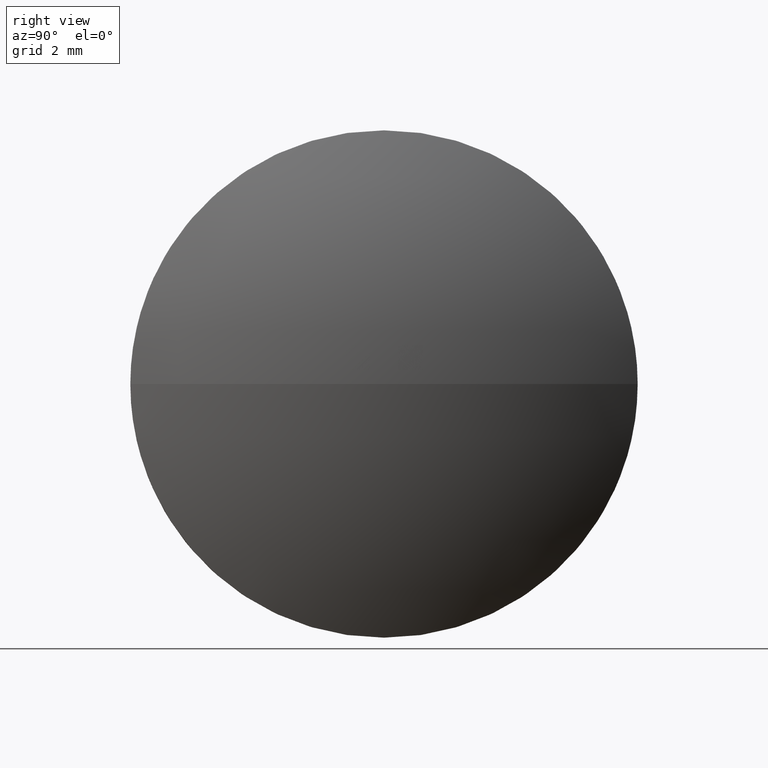
[diagram: clean part render]
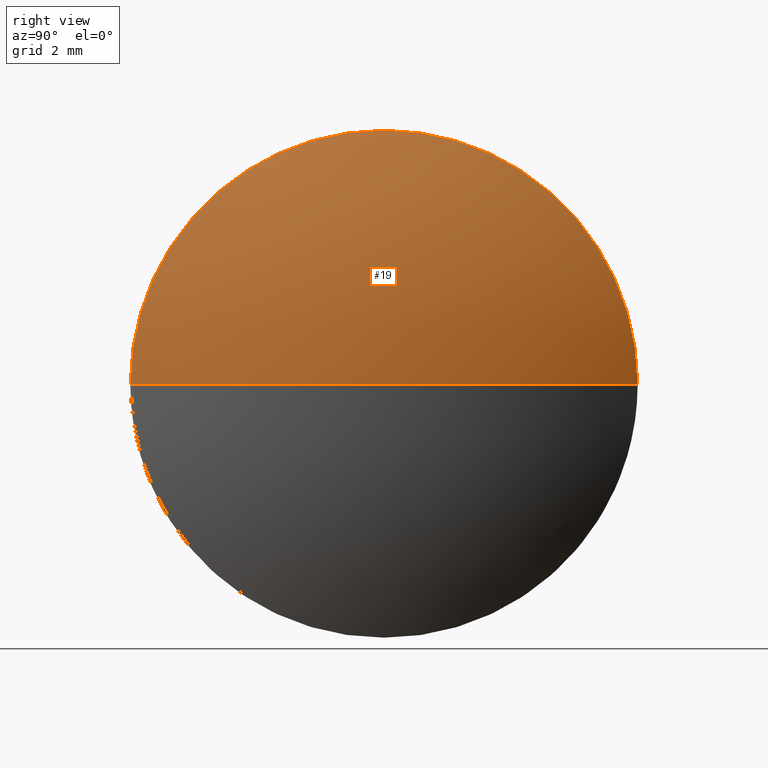
[diagram: same view with one face highlighted and labeled with its STEP entity id]
A machine part, right view. The second image highlights one B-rep face of the part: STEP entity #19.
In plain terms, the highlighted spherical surface has radius 10.3349 mm.
Its self-contained STEP definition (entity closure, byte-faithful):
#4 = DIRECTION ( 'NONE',  ( -0.0000000000000000000, 0.0000000000000000000, 1.000000000000000000 ) ) ;
#13 = CARTESIAN_POINT ( 'NONE',  ( 582.0191052701056800, 187.9834042929954000, 0.0000000000000000000 ) ) ;
#16 = EDGE_CURVE ( 'NONE', #52, #73, #164, .T. ) ;
#19 = ADVANCED_FACE ( 'NONE', ( #125 ), #150, .T. ) ;
#22 = CARTESIAN_POINT ( 'NONE',  ( 582.0191052701056800, 182.9834042929953700, 5.000000000000004400 ) ) ;
#31 = VERTEX_POINT ( 'NONE', #186 ) ;
#41 = DIRECTION ( 'NONE',  ( 0.0000000000000000000, 0.0000000000000000000, 1.000000000000000000 ) ) ;
#42 = AXIS2_PLACEMENT_3D ( 'NONE', #63, #160, #131 ) ;
#45 = ORIENTED_EDGE ( 'NONE', *, *, #151, .F. ) ;
#49 = AXIS2_PLACEMENT_3D ( 'NONE', #54, #82, #41 ) ;
#51 = AXIS2_PLACEMENT_3D ( 'NONE', #91, #175, #161 ) ;
#52 = VERTEX_POINT ( 'NONE', #129 ) ;
#54 = CARTESIAN_POINT ( 'NONE',  ( 582.0191052701056800, 182.9834042929953700, 0.0000000000000000000 ) ) ;
#58 = EDGE_CURVE ( 'NONE', #31, #133, #183, .T. ) ;
#63 = CARTESIAN_POINT ( 'NONE',  ( 572.9741827894854400, 182.9834042929954300, 0.0000000000000000000 ) ) ;
#68 = CARTESIAN_POINT ( 'NONE',  ( 572.9741827894854400, 182.9834042929954300, 0.0000000000000000000 ) ) ;
#73 = VERTEX_POINT ( 'NONE', #22 ) ;
#75 = CIRCLE ( 'NONE', #49, 5.000000000000004400 ) ;
#79 = CARTESIAN_POINT ( 'NONE',  ( 572.9741827894854400, 182.9834042929954300, 0.0000000000000000000 ) ) ;
#82 = DIRECTION ( 'NONE',  ( -1.000000000000000000, -0.0000000000000000000, -0.0000000000000000000 ) ) ;
#85 = ORIENTED_EDGE ( 'NONE', *, *, #16, .F. ) ;
#86 = ORIENTED_EDGE ( 'NONE', *, *, #58, .T. ) ;
#91 = CARTESIAN_POINT ( 'NONE',  ( 582.0191052701056800, 182.9834042929953700, 0.0000000000000000000 ) ) ;
#94 = DIRECTION ( 'NONE',  ( 0.0000000000000000000, 1.000000000000000000, 1.224646799147353500E-016 ) ) ;
#95 = AXIS2_PLACEMENT_3D ( 'NONE', #68, #163, #94 ) ;
#96 = EDGE_LOOP ( 'NONE', ( #159, #86, #45, #85 ) ) ;
#101 = CIRCLE ( 'NONE', #95, 10.33492248062026200 ) ;
#124 = DIRECTION ( 'NONE',  ( 1.000000000000000000, 0.0000000000000000000, 0.0000000000000000000 ) ) ;
#125 = FACE_OUTER_BOUND ( 'NONE', #96, .T. ) ;
#129 = CARTESIAN_POINT ( 'NONE',  ( 582.0191052701056800, 177.9834042929954000, -6.123233995736802800E-016 ) ) ;
#131 = DIRECTION ( 'NONE',  ( 0.0000000000000000000, 1.000000000000000000, 0.0000000000000000000 ) ) ;
#133 = VERTEX_POINT ( 'NONE', #13 ) ;
#150 = SPHERICAL_SURFACE ( 'NONE', #42, 10.33492248062026400 ) ;
#151 = EDGE_CURVE ( 'NONE', #73, #133, #75, .T. ) ;
#159 = ORIENTED_EDGE ( 'NONE', *, *, #170, .F. ) ;
#160 = DIRECTION ( 'NONE',  ( -0.0000000000000000000, 0.0000000000000000000, -1.000000000000000000 ) ) ;
#161 = DIRECTION ( 'NONE',  ( 0.0000000000000000000, 0.0000000000000000000, 1.000000000000000000 ) ) ;
#163 = DIRECTION ( 'NONE',  ( 0.0000000000000000000, 1.224646799147353200E-016, -1.000000000000000000 ) ) ;
#164 = CIRCLE ( 'NONE', #51, 5.000000000000004400 ) ;
#165 = AXIS2_PLACEMENT_3D ( 'NONE', #79, #4, #124 ) ;
#170 = EDGE_CURVE ( 'NONE', #31, #52, #101, .T. ) ;
#175 = DIRECTION ( 'NONE',  ( -1.000000000000000000, -0.0000000000000000000, -0.0000000000000000000 ) ) ;
#183 = CIRCLE ( 'NONE', #165, 10.33492248062028900 ) ;
#186 = CARTESIAN_POINT ( 'NONE',  ( 583.3091052701057600, 182.9834042929954300, 0.0000000000000000000 ) ) ;